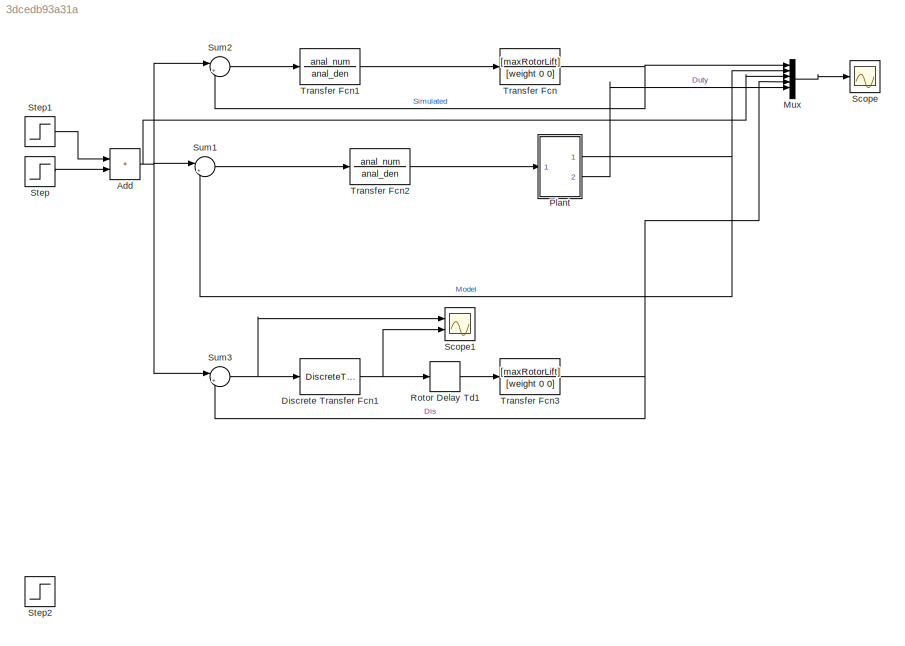
MODEL slx_3dcedb93a31a
KIND model
CONFIG AbsTol = auto
CONFIG EnableMultiTasking = off
CONFIG FixedStep = auto
CONFIG MaxStep = 0.0002
CONFIG MinStep = 0.0001
CONFIG RelTol = 1e-3
CONFIG SampleTimeConstraint = Unconstrained
CONFIG SolverName = VariableStepAuto
CONFIG StartTime = 0.0
CONFIG StopTime = 20
BLOCK [Sum] Add
  IconShape = rectangular
  Ports = [2, 1]
BLOCK [DiscreteTransferFcn] Discrete Transfer Fcn1
  Denominator = den
  InputPortMap = u0
  Numerator = num
  Ports = [1, 1]
  SampleTime = t
BLOCK [Mux] Mux
  DisplayOption = bar
  Inputs = 6
  Ports = [6, 1]
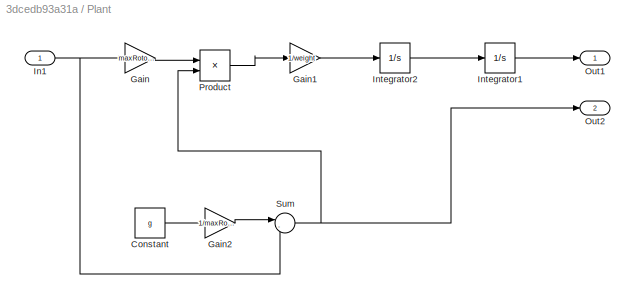
BLOCK [SubSystem] Plant
  Ports = [1, 2]
  RequestExecContextInheritance = off
BLOCK [Constant] Plant/Constant
  Value = g
BLOCK [Gain] Plant/Gain
  Gain = maxRotorLift
BLOCK [Gain] Plant/Gain1
  Gain = 1/weight
BLOCK [Gain] Plant/Gain2
  Gain = 1/maxRotorLift
BLOCK [Inport] Plant/In1
BLOCK [Integrator] Plant/Integrator1
  Ports = [1, 1]
BLOCK [Integrator] Plant/Integrator2
  Ports = [1, 1]
BLOCK [Outport] Plant/Out1
BLOCK [Outport] Plant/Out2
  Port = 2
BLOCK [Product] Plant/Product
  Ports = [2, 1]
BLOCK [Sum] Plant/Sum
  Inputs = |-+
  Ports = [2, 1]
BLOCK [TransportDelay] Rotor Delay Td1
  DelayTime = t
  Ports = [1, 1]
BLOCK [Scope] Scope
  Floating = off
  NumInputPorts = 1
  Ports = [1]
  ScopeSpecificationString = Simulink.scopes.TimeScopeBlockCfg('CurrentConfiguration', extmgr.ConfigurationSet(extmgr.Configuration('Core','General UI',true),extmgr.Configuration('Core','Source UI',true),extmgr.Configuration('Sources','WiredSimulink',true),extmgr.Configuration('Visuals','Time Domain',true,'SerializedDisplays',{struct('MinYLimReal','-0.16311','MaxYLimReal','1.46802','YLabelReal','','MinYLimMag','0.00000','MaxY...<+1470ch>
BLOCK [Scope] Scope1
  Floating = off
  NumInputPorts = 2
  Ports = [2]
  ScopeSpecificationString = Simulink.scopes.TimeScopeBlockCfg('CurrentConfiguration', extmgr.ConfigurationSet(extmgr.Configuration('Core','General UI',true),extmgr.Configuration('Core','Source UI',true),extmgr.Configuration('Sources','WiredSimulink',true,'DataLoggingVariableName','ScopeData1'),extmgr.Configuration('Visuals','Time Domain',true,'SerializedDisplays',{struct('MinYLimReal','-0.09974','MaxYLimReal','1.04928','YLab...<+1495ch>
BLOCK [Step] Step
  SampleTime = 0
BLOCK [Step] Step1
  After = 0
  SampleTime = 0
  Time = 5
BLOCK [Step] Step2
  SampleTime = 0
BLOCK [Sum] Sum1
  Inputs = |+-
  Ports = [2, 1]
BLOCK [Sum] Sum2
  Inputs = |+-
  Ports = [2, 1]
BLOCK [Sum] Sum3
  Inputs = |+-
  Ports = [2, 1]
BLOCK [TransferFcn] Transfer Fcn
  Denominator = [weight 0 0]
  Numerator = [maxRotorLift]
BLOCK [TransferFcn] Transfer Fcn1
  Denominator = anal_den
  Numerator = anal_num
BLOCK [TransferFcn] Transfer Fcn2
  Denominator = anal_den
  Numerator = anal_num
BLOCK [TransferFcn] Transfer Fcn3
  Denominator = [weight 0 0]
  Numerator = [maxRotorLift]
NET Add:1 -> Mux:3, Sum1:1, Sum2:1, Sum3:1
NET Discrete Transfer Fcn1:1 -> Rotor Delay Td1:1, Scope1:2
LINE Mux:1 -> Scope:1
LINE Plant/Constant:1 -> Plant/Gain2:1
LINE Plant/Gain1:1 -> Plant/Integrator2:1
LINE Plant/Gain2:1 -> Plant/Sum:1
LINE Plant/Gain:1 -> Plant/Product:1
NET Plant/In1:1 -> Plant/Gain:1, Plant/Sum:2
LINE Plant/Integrator1:1 -> Plant/Out1:1
LINE Plant/Integrator2:1 -> Plant/Integrator1:1
LINE Plant/Product:1 -> Plant/Gain1:1
NET Plant/Sum:1 -> Plant/Out2:1, Plant/Product:2
NET Plant:1 -> Mux:2, Sum1:2
LINE Plant:2 -> Mux:5
LINE Rotor Delay Td1:1 -> Transfer Fcn3:1
LINE Step1:1 -> Add:1
LINE Step:1 -> Add:2
LINE Sum1:1 -> Transfer Fcn2:1
LINE Sum2:1 -> Transfer Fcn1:1
NET Sum3:1 -> Discrete Transfer Fcn1:1, Scope1:1
LINE Transfer Fcn1:1 -> Transfer Fcn:1
LINE Transfer Fcn2:1 -> Plant:1
NET Transfer Fcn3:1 -> Mux:4, Sum3:2
NET Transfer Fcn:1 -> Mux:1, Sum2:2
note: NET lines group one-source signal fan-out (src -> all destinations, sorted); 1:1 wires keep LINE
